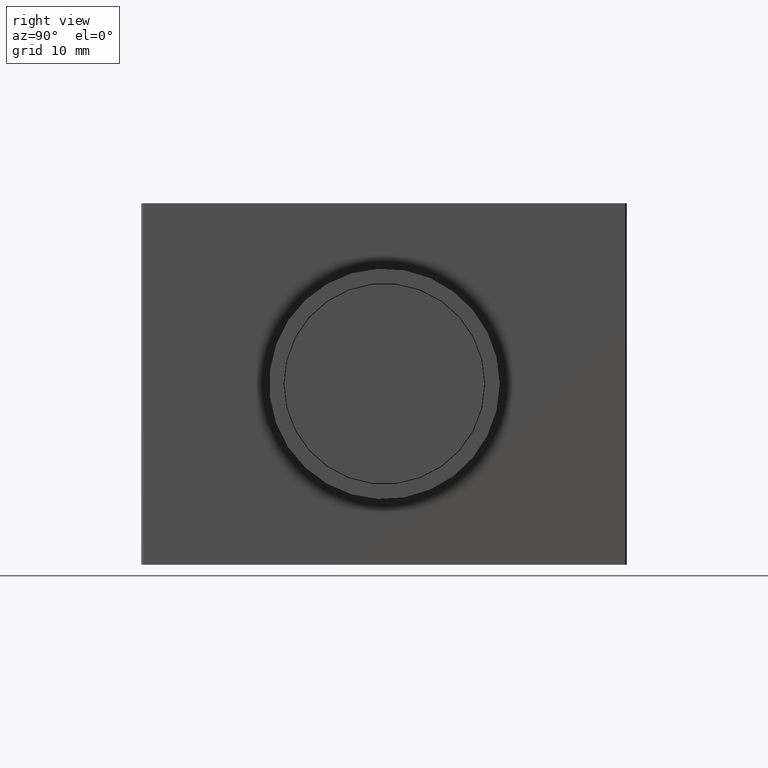
[diagram: clean part render]
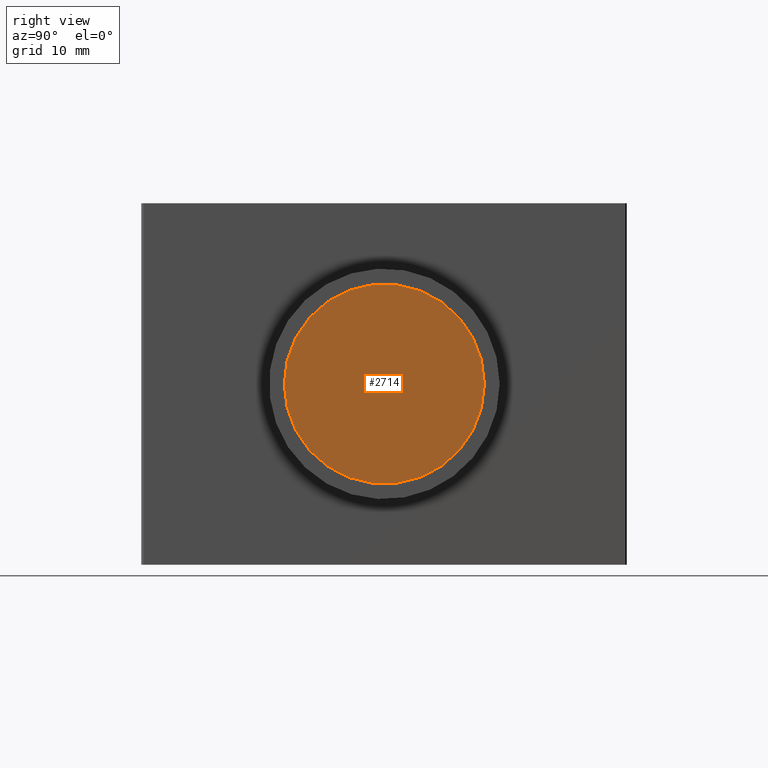
[diagram: same view with one face highlighted and labeled with its STEP entity id]
A machine part, right view. The second image highlights one B-rep face of the part: STEP entity #2714.
In plain terms, the highlighted planar face has unit normal (1, 0, 0).
Its self-contained STEP definition (entity closure, byte-faithful):
#2691=CARTESIAN_POINT('',(7.877402920957433,13.199713552126420,0.0));
#2692=VERTEX_POINT('',#2691);
#2693=CARTESIAN_POINT('',(7.877402920957433,0.749713552126411,0.0));
#2694=DIRECTION('',(1.0,1.449993E-013,0.0));
#2695=DIRECTION('',(-1.449993E-013,1.0,0.0));
#2696=AXIS2_PLACEMENT_3D('',#2693,#2694,#2695);
#2697=CIRCLE('',#2696,12.450000000000010);
#2698=EDGE_CURVE('',#2692,#2692,#2697,.T.);
#2706=CARTESIAN_POINT('',(7.877402920957433,6.974713552126415,0.0));
#2707=DIRECTION('',(1.0,0.0,0.0));
#2708=DIRECTION('',(0.0,0.0,-1.0));
#2709=AXIS2_PLACEMENT_3D('',#2706,#2707,#2708);
#2710=PLANE('',#2709);
#2711=ORIENTED_EDGE('',*,*,#2698,.T.);
#2712=EDGE_LOOP('',(#2711));
#2713=FACE_OUTER_BOUND('',#2712,.T.);
#2714=ADVANCED_FACE('',(#2713),#2710,.T.);